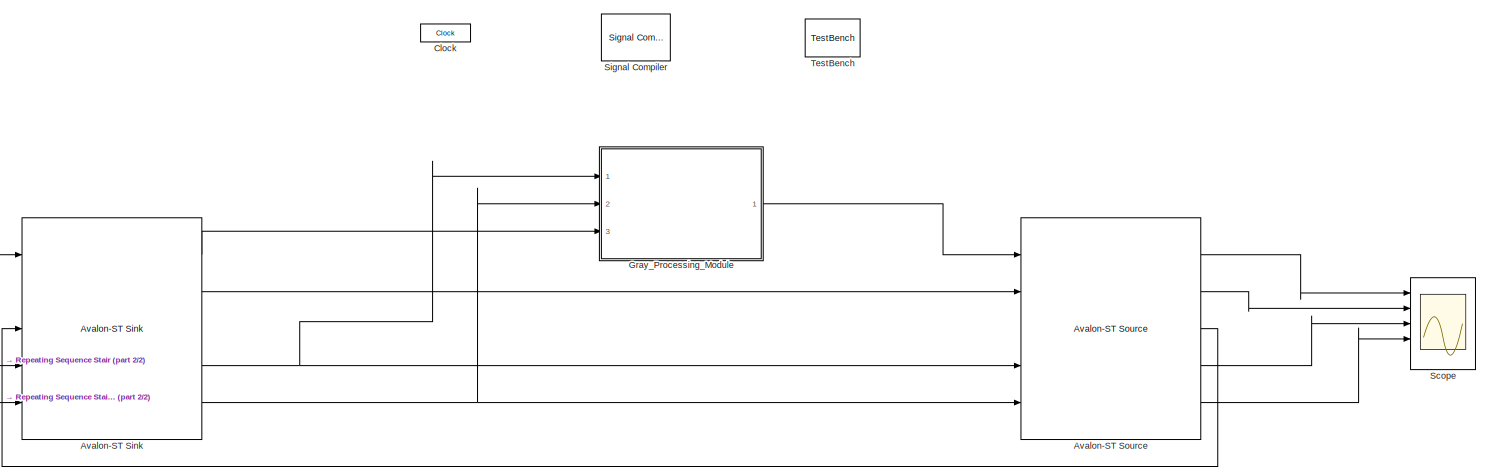
[diagram: root canvas - part 1/2, most of the canvas]
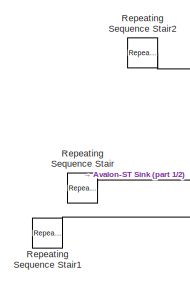
[diagram: root canvas - part 2/2, bottom left region]
MODEL slx_42ce159d7574
KIND model
CONFIG InitFcn = %% DSPBuilder Start\nalt_dspbuilder_update_model(bdroot)\n%% DSPBuilder End\n
BLOCK [Reference] Avalon-ST Sink  REF=allblocks_alteradspbuilder2/Avalon-ST Sink
  BusType = Unsigned Integer
  PORTTYPE = Output
  Ports = [5, 5]
  SourceBlock = allblocks_alteradspbuilder2/Avalon-ST Sink
  SourceType = Avalon-ST Sink AlteraBlockset
  SpecifyClock = off
  bwl = 24
  bwr = 0
  empty = off
  endOfPacket = on
  externalType = Inferred
  iofile = <path>%5FProcessing_Avalon-ST+Sink_data.salt,<path>%5FProcessing_Avalon-ST+Sink_valid.salt,<path>%5FProcessing_Avalon-ST+Sink_ready.capt...<+286ch>
  numOfChannels = 0
  numOfErrorDescriptors = 0
  readyLatency = 1
  startOfPacket = on
  symbolWidth = 8
  symbolsPerBeat = 3
BLOCK [Reference] Avalon-ST Source  REF=allblocks_alteradspbuilder2/Avalon-ST Source
  BusType = Unsigned Integer
  PORTTYPE = Input
  Ports = [5, 5]
  SourceBlock = allblocks_alteradspbuilder2/Avalon-ST Source
  SourceType = Avalon-ST Source AlteraBlockset
  SpecifyClock = off
  bwl = 24
  bwr = 0
  empty = off
  endOfPacket = on
  externalType = Inferred
  iofile = <path>%5FProcessing_Avalon-ST+Source_data.capture,<path>%5FProcessing_Avalon-ST+Source_valid.capture,<path>%5FProcessing_Avalon-ST+Sourc...<+305ch>
  numOfChannels = 0
  numOfErrorDescriptors = 0
  readyLatency = 1
  startOfPacket = on
  symbolWidth = 8
  symbolsPerBeat = 3
BLOCK [Reference] Clock  REF=allblocks_alteradspbuilder2/Clock
  ClockPeriod = 7.5
  ClockPeriodUnit = ns
  Export = off
  PhaseOffset = 0
  Ports = []
  Reset = aclr
  ResetLatency = 0
  ResetRegisterCascadeDepth = 0
  ResetType = Active Low
  SampleTime = 1
  SimulationStartCycle = 5
  SourceBlock = allblocks_alteradspbuilder2/Clock
  SourceType = BaseClock AlteraBlockset
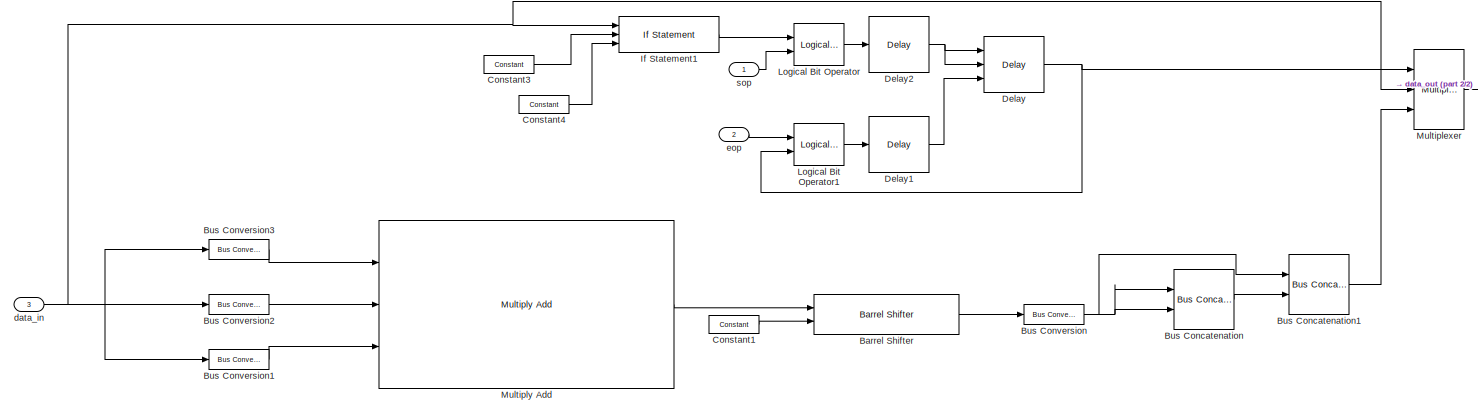
[diagram: Gray_Processing_Module - part 1/2, most of the canvas]
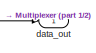
[diagram: Gray_Processing_Module - part 2/2, top right region]
BLOCK [SubSystem] Gray_Processing_Module
  FunctionWithSeparateData = off
  MaskHideContents = off
  MinAlgLoopOccurrences = off
  Opaque = off
  Ports = [3, 1]
  PropExecContextOutsideSubsystem = off
  RTWSystemCode = Auto
  RequestExecContextInheritance = off
BLOCK [Reference] Gray_Processing_Module/Barrel Shifter  REF=allblocks_alteradspbuilder2/Barrel Shifter
  BusType = Unsigned Integer
  Ports = [2, 1]
  ShiftDirection = Shift right
  SourceBlock = allblocks_alteradspbuilder2/Barrel Shifter
  SourceType = BarrelShifter AlteraBlockset
  UseDedicatedCircuitry = off
  allowFloatingPointOverride = on
  bwl = 18
  bwr = 8
  distance_length = 4
  infer_distance = off
  logFile = <path>%5FProcessing_Gray%5FProcessing%5FModule_Barrel+Shifter.fixedpointlog
  logOutputs = off
  pipeline = off
  pipeline_display = 0
  use_aclr = off
  use_ena = off
BLOCK [Reference] Gray_Processing_Module/Bus Concatenation  REF=allblocks_alteradspbuilder2/Bus Concatenation
  Ports = [2, 1]
  SourceBlock = allblocks_alteradspbuilder2/Bus Concatenation
  SourceType = Bus Concatenate AlteraBlockset
  awidth = 8
  bwidth = 8
  isSigned = off
  pipeline_display = 0
BLOCK [Reference] Gray_Processing_Module/Bus Concatenation1  REF=allblocks_alteradspbuilder2/Bus Concatenation
  Ports = [2, 1]
  SourceBlock = allblocks_alteradspbuilder2/Bus Concatenation
  SourceType = Bus Concatenate AlteraBlockset
  awidth = 8
  bwidth = 16
  isSigned = off
  pipeline_display = 0
BLOCK [Reference] Gray_Processing_Module/Bus Conversion  REF=allblocks_alteradspbuilder2/Bus Conversion
  BusType = Unsigned Integer
  Ports = [1, 1]
  SourceBlock = allblocks_alteradspbuilder2/Bus Conversion
  SourceType = Bus Conversion AlteraBlockset
  bitToConnectToOutputLSB = 0
  bwl = 8
  bwr = 1
  ibwl = 18
  ibwr = 1
  pipeline_display = 0
  round = off
  saturate = off
BLOCK [Reference] Gray_Processing_Module/Bus Conversion1  REF=allblocks_alteradspbuilder2/Bus Conversion
  BusType = Unsigned Integer
  Ports = [1, 1]
  SourceBlock = allblocks_alteradspbuilder2/Bus Conversion
  SourceType = Bus Conversion AlteraBlockset
  bitToConnectToOutputLSB = 0
  bwl = 8
  bwr = 1
  ibwl = 24
  ibwr = 1
  pipeline_display = 0
  round = off
  saturate = off
BLOCK [Reference] Gray_Processing_Module/Bus Conversion2  REF=allblocks_alteradspbuilder2/Bus Conversion
  BusType = Unsigned Integer
  Ports = [1, 1]
  SourceBlock = allblocks_alteradspbuilder2/Bus Conversion
  SourceType = Bus Conversion AlteraBlockset
  bitToConnectToOutputLSB = 8
  bwl = 8
  bwr = 1
  ibwl = 24
  ibwr = 1
  pipeline_display = 0
  round = off
  saturate = off
BLOCK [Reference] Gray_Processing_Module/Bus Conversion3  REF=allblocks_alteradspbuilder2/Bus Conversion
  BusType = Unsigned Integer
  Ports = [1, 1]
  SourceBlock = allblocks_alteradspbuilder2/Bus Conversion
  SourceType = Bus Conversion AlteraBlockset
  bitToConnectToOutputLSB = 16
  bwl = 8
  bwr = 1
  ibwl = 24
  ibwr = 1
  pipeline_display = 0
  round = off
  saturate = off
BLOCK [Reference] Gray_Processing_Module/Constant1  REF=allblocks_alteradspbuilder2/Constant
  BusType = Unsigned Integer
  Ports = [0, 1]
  SourceBlock = allblocks_alteradspbuilder2/Constant
  SourceType = Constant AlteraBlockset
  SpecifyClock = off
  allowFloatingPointOverride = on
  bwl = 4
  bwr = 0
  logFile = <path>%5FProcessing_Gray%5FProcessing%5FModule_Constant1.fixedpointlog
  logOutputs = off
  mask_cst = 8
  roundMode = Truncate
  satMode = Wrap
BLOCK [Reference] Gray_Processing_Module/Constant3  REF=allblocks_alteradspbuilder2/Constant
  BusType = Unsigned Integer
  Ports = [0, 1]
  SourceBlock = allblocks_alteradspbuilder2/Constant
  SourceType = Constant AlteraBlockset
  SpecifyClock = off
  allowFloatingPointOverride = on
  bwl = 24
  bwr = 0
  logFile = <path>%5FProcessing_Gray%5FProcessing%5FModule_Constant3.fixedpointlog
  logOutputs = off
  mask_cst = 0
  roundMode = Truncate
  satMode = Wrap
BLOCK [Reference] Gray_Processing_Module/Constant4  REF=allblocks_alteradspbuilder2/Constant
  BusType = Unsigned Integer
  Ports = [0, 1]
  SourceBlock = allblocks_alteradspbuilder2/Constant
  SourceType = Constant AlteraBlockset
  SpecifyClock = off
  allowFloatingPointOverride = on
  bwl = 24
  bwr = 0
  logFile = <path>%5FProcessing_Gray%5FProcessing%5FModule_Constant4.fixedpointlog
  logOutputs = off
  mask_cst = 15
  roundMode = Truncate
  satMode = Wrap
BLOCK [Reference] Gray_Processing_Module/Delay  REF=allblocks_alteradspbuilder2/Delay
  ClockPhase = 1
  Ports = [3, 1]
  SourceBlock = allblocks_alteradspbuilder2/Delay
  SourceType = Delay AlteraBlockset
  allowFloatingPointOverride = on
  logFile = <path>%5FProcessing_Gray%5FProcessing%5FModule_Delay.fixedpointlog
  logOutputs = off
  pipeline = 1
  pipeline_display = 1
  reset_value = 0
  use_ena = on
  use_init = on
  use_sclr = on
BLOCK [Reference] Gray_Processing_Module/Delay1  REF=allblocks_alteradspbuilder2/Delay
  ClockPhase = 1
  Ports = [1, 1]
  SourceBlock = allblocks_alteradspbuilder2/Delay
  SourceType = Delay AlteraBlockset
  allowFloatingPointOverride = on
  logFile = <path>%5FProcessing_Gray%5FProcessing%5FModule_Delay1.fixedpointlog
  logOutputs = off
  pipeline = 1
  pipeline_display = 1
  reset_value = 0
  use_ena = off
  use_init = off
  use_sclr = off
BLOCK [Reference] Gray_Processing_Module/Delay2  REF=allblocks_alteradspbuilder2/Delay
  ClockPhase = 1
  Ports = [1, 1]
  SourceBlock = allblocks_alteradspbuilder2/Delay
  SourceType = Delay AlteraBlockset
  allowFloatingPointOverride = on
  logFile = <path>%5FProcessing_Gray%5FProcessing%5FModule_Delay2.fixedpointlog
  logOutputs = off
  pipeline = 1
  pipeline_display = 1
  reset_value = 0
  use_ena = off
  use_init = off
  use_sclr = off
BLOCK [Reference] Gray_Processing_Module/If Statement1  REF=allblocks_alteradspbuilder2/If Statement
  BusType = Unsigned Integer
  Ports = [3, 1]
  SourceBlock = allblocks_alteradspbuilder2/If Statement
  SourceType = If Statement AlteraBlockset
  bwl = 24
  bwr = 0
  if_expression = (a=b)&(a~c)
  pipeline_display = 1
  use_else_output = off
  use_elseif_input = off
  user_inputs = 3
BLOCK [Reference] Gray_Processing_Module/Logical Bit Operator  REF=allblocks_alteradspbuilder2/Logical Bit Operator
  LogicalOperator = AND
  Ports = [2, 1]
  SourceBlock = allblocks_alteradspbuilder2/Logical Bit Operator
  SourceType = Logical Bit Operator AlteraBlockset
  pipeline_display = 0
  user_inputs = 2
BLOCK [Reference] Gray_Processing_Module/Logical Bit Operator1  REF=allblocks_alteradspbuilder2/Logical Bit Operator
  LogicalOperator = AND
  Ports = [2, 1]
  SourceBlock = allblocks_alteradspbuilder2/Logical Bit Operator
  SourceType = Logical Bit Operator AlteraBlockset
  pipeline_display = 0
  user_inputs = 2
BLOCK [Reference] Gray_Processing_Module/Multiplexer  REF=allblocks_alteradspbuilder2/Multiplexer
  Ports = [3, 1]
  SourceBlock = allblocks_alteradspbuilder2/Multiplexer
  SourceType = Multiplexer AlteraBlockset
  allowFloatingPointOverride = on
  logFile = <path>%5FProcessing_Gray%5FProcessing%5FModule_Multiplexer.fixedpointlog
  logOutputs = off
  numInputs = 2
  oneHot = off
  pipeline = 0
  pipeline_display = 0
  use_aclr = off
  use_ena = off
BLOCK [Reference] Gray_Processing_Module/Multiply Add  REF=allblocks_alteradspbuilder2/Multiply Add
  BusType = Unsigned Integer
  Ports = [3, 1]
  SourceBlock = allblocks_alteradspbuilder2/Multiply Add
  SourceType = MultiplyAdd AlteraBlockset
  UseDedicatedCircuitry = on
  allowFloatingPointOverride = on
  bwl = 8
  bwr = 0
  constants = [76 150 30]
  direction = Add Add
  logFile = <path>%5FProcessing_Gray%5FProcessing%5FModule_Multiply+Add.fixedpointlog
  logOutputs = off
  multipliers = 3
  pipeline_display = 0
  pipeline_register = No Register
  use_aclr = off
  use_constants = on
  use_ena = off
BLOCK [Inport] Gray_Processing_Module/data_in
  IconDisplay = Port number
  Port = 3
BLOCK [Outport] Gray_Processing_Module/data_out
  IconDisplay = Port number
BLOCK [Inport] Gray_Processing_Module/eop
  IconDisplay = Port number
  Port = 2
BLOCK [Inport] Gray_Processing_Module/sop
  IconDisplay = Port number
BLOCK [Reference] Repeating Sequence Stair  REF=simulink/Sources/Repeating
Sequence
Stair
  ConRadixGroup = Best Precision: Vector-wise
  LockScale = off
  OutDataType = fixdt(0,8)
  OutDataTypeStr = double
  OutMax = []
  OutMin = []
  OutScaling = 2^-12
  OutValues = [1 0 0 0 1 0 0 0 0 0].'
  OutputDataTypeScalingMode = double
  Ports = [0, 1]
  SourceBlock = simulink/Sources/Repeating\nSequence\nStair
  SourceType = Repeating Sequence Stair
  tsamp = -1
BLOCK [Reference] Repeating Sequence Stair1  REF=simulink/Sources/Repeating
Sequence
Stair
  ConRadixGroup = Best Precision: Vector-wise
  LockScale = off
  OutDataType = fixdt(0,8)
  OutDataTypeStr = double
  OutMax = []
  OutMin = []
  OutScaling = 2^-12
  OutValues = [0 0 0 1 0 0 0 0 0 1].'
  OutputDataTypeScalingMode = double
  Ports = [0, 1]
  SourceBlock = simulink/Sources/Repeating\nSequence\nStair
  SourceType = Repeating Sequence Stair
  tsamp = -1
BLOCK [Reference] Repeating Sequence Stair2  REF=simulink/Sources/Repeating
Sequence
Stair
  ConRadixGroup = Best Precision: Vector-wise
  LockScale = off
  OutDataType = fixdt(0,8)
  OutDataTypeStr = double
  OutMax = []
  OutMin = []
  OutScaling = 2^-12
  OutValues = [15 101 102 103 0 65793 66305 189 190 254].'
  OutputDataTypeScalingMode = double
  Ports = [0, 1]
  SourceBlock = simulink/Sources/Repeating\nSequence\nStair
  SourceType = Repeating Sequence Stair
  tsamp = -1
BLOCK [Scope] Scope
  DataFormat = StructureWithTime
  Floating = off
  NumInputPorts = 5
  Ports = [5]
  SampleTime = 0
  ShowLegends = off
  YMax = 5~5~5~5~5
  YMin = -5~-5~-5~-5~-5
BLOCK [Reference] Signal Compiler  REF=allblocks_alteradspbuilder2/Signal Compiler
  DeviceFamily = Cyclone V
  DeviceName = AUTO
  DisableEarlyHDLGeneration = off
  EnableSignalTap = off
  ExportDir = <path>
  Ports = []
  SignalTapDepth = 128
  SourceBlock = allblocks_alteradspbuilder2/Signal Compiler
  SourceType = Signal Compiler AlteraBlockset
  StpClock = Clock
  StpUseDefaultClock = on
  UseBoardBlock = off
BLOCK [Reference] TestBench  REF=allblocks_alteradspbuilder2/TestBench
  Ports = []
  SourceBlock = allblocks_alteradspbuilder2/TestBench
  SourceType = TestBench AlteraBlockset
  advancedMode = on
  enable = on
  maxDisplayErrors = 10
  mismatchErrorLevel = Error
  modelSimGui = off
  simdatafile = <path>
LINE Avalon-ST Sink:1 -> Gray_Processing_Module:3
LINE Avalon-ST Sink:2 -> Avalon-ST Source:2
NET Avalon-ST Sink:4 -> Avalon-ST Source:4, Gray_Processing_Module:1
NET Avalon-ST Sink:5 -> Avalon-ST Source:5, Gray_Processing_Module:2
LINE Avalon-ST Source:1 -> Scope:1
LINE Avalon-ST Source:2 -> Scope:2
LINE Avalon-ST Source:3 -> Avalon-ST Sink:3
LINE Avalon-ST Source:4 -> Scope:3
LINE Avalon-ST Source:5 -> Scope:4
LINE Gray_Processing_Module/Barrel Shifter:1 -> Gray_Processing_Module/Bus Conversion:1
LINE Gray_Processing_Module/Bus Concatenation1:1 -> Gray_Processing_Module/Multiplexer:3
LINE Gray_Processing_Module/Bus Concatenation:1 -> Gray_Processing_Module/Bus Concatenation1:2
LINE Gray_Processing_Module/Bus Conversion1:1 -> Gray_Processing_Module/Multiply Add:3
LINE Gray_Processing_Module/Bus Conversion2:1 -> Gray_Processing_Module/Multiply Add:2
LINE Gray_Processing_Module/Bus Conversion3:1 -> Gray_Processing_Module/Multiply Add:1
NET Gray_Processing_Module/Bus Conversion:1 -> Gray_Processing_Module/Bus Concatenation1:1, Gray_Processing_Module/Bus Concatenation:1, Gray_Processing_Module/Bus Concatenation:2
LINE Gray_Processing_Module/Constant1:1 -> Gray_Processing_Module/Barrel Shifter:2
LINE Gray_Processing_Module/Constant3:1 -> Gray_Processing_Module/If Statement1:2
LINE Gray_Processing_Module/Constant4:1 -> Gray_Processing_Module/If Statement1:3
LINE Gray_Processing_Module/Delay1:1 -> Gray_Processing_Module/Delay:3
NET Gray_Processing_Module/Delay2:1 -> Gray_Processing_Module/Delay:1, Gray_Processing_Module/Delay:2
NET Gray_Processing_Module/Delay:1 -> Gray_Processing_Module/Logical Bit Operator1:2, Gray_Processing_Module/Multiplexer:1
LINE Gray_Processing_Module/If Statement1:1 -> Gray_Processing_Module/Logical Bit Operator:1
LINE Gray_Processing_Module/Logical Bit Operator1:1 -> Gray_Processing_Module/Delay1:1
LINE Gray_Processing_Module/Logical Bit Operator:1 -> Gray_Processing_Module/Delay2:1
LINE Gray_Processing_Module/Multiplexer:1 -> Gray_Processing_Module/data_out:1
LINE Gray_Processing_Module/Multiply Add:1 -> Gray_Processing_Module/Barrel Shifter:1
NET Gray_Processing_Module/data_in:1 -> Gray_Processing_Module/Bus Conversion1:1, Gray_Processing_Module/Bus Conversion2:1, Gray_Processing_Module/Bus Conversion3:1, Gray_Processing_Module/If Statement1:1, Gray_Processing_Module/Multiplexer:2
LINE Gray_Processing_Module/eop:1 -> Gray_Processing_Module/Logical Bit Operator1:1
LINE Gray_Processing_Module/sop:1 -> Gray_Processing_Module/Logical Bit Operator:2
LINE Gray_Processing_Module:1 -> Avalon-ST Source:1
LINE Repeating Sequence Stair1:1 -> Avalon-ST Sink:5
LINE Repeating Sequence Stair2:1 -> Avalon-ST Sink:1
LINE Repeating Sequence Stair:1 -> Avalon-ST Sink:4
note: NET lines group one-source signal fan-out (src -> all destinations, sorted); 1:1 wires keep LINE
note: 17 file-system paths scrubbed to <path> (not preserved elsewhere — flat text is the only slx artifact)
